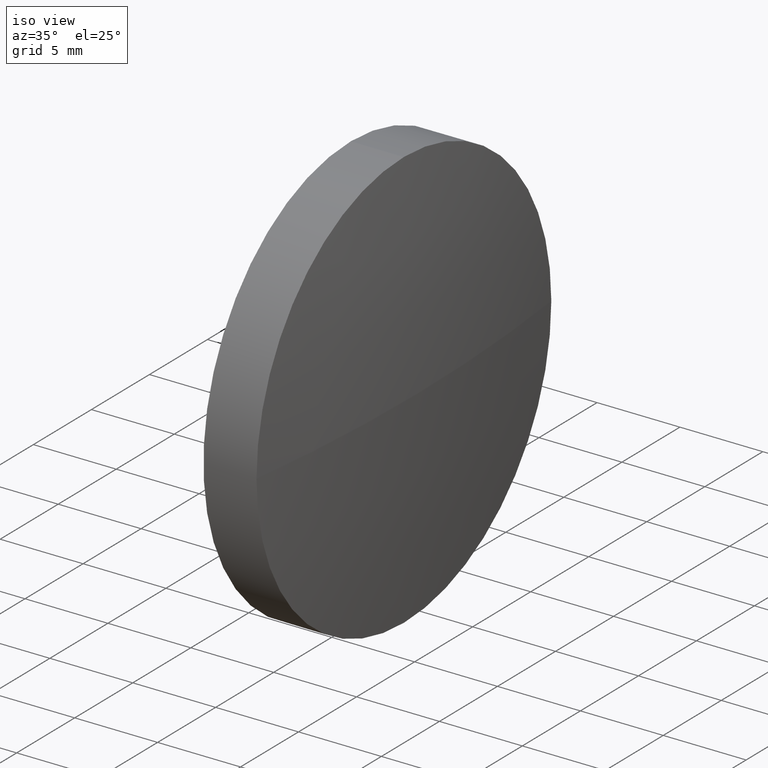
[diagram: clean part render]
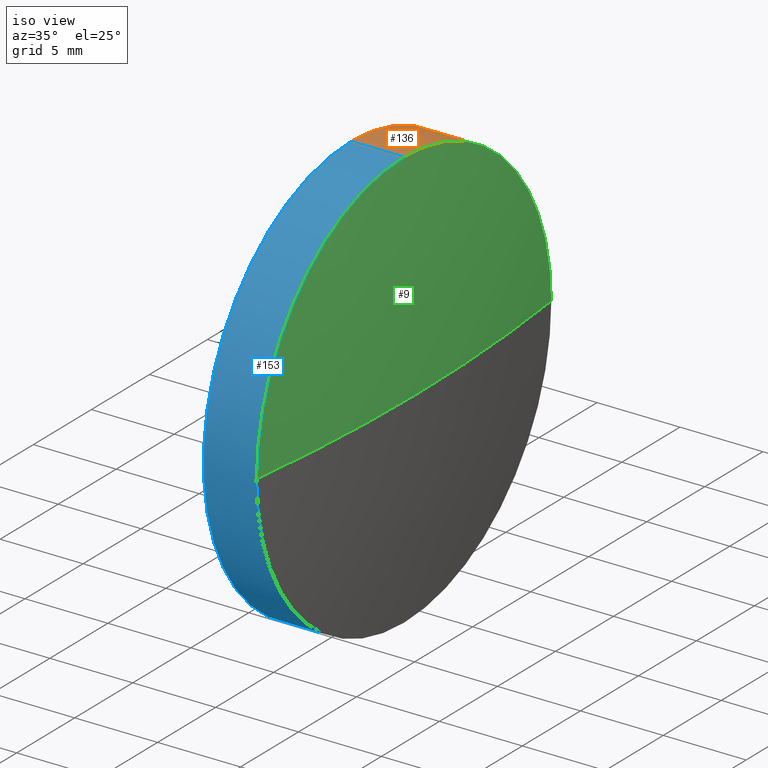
[diagram: same view with three faces highlighted in distinct colors, each labeled with its STEP entity id]
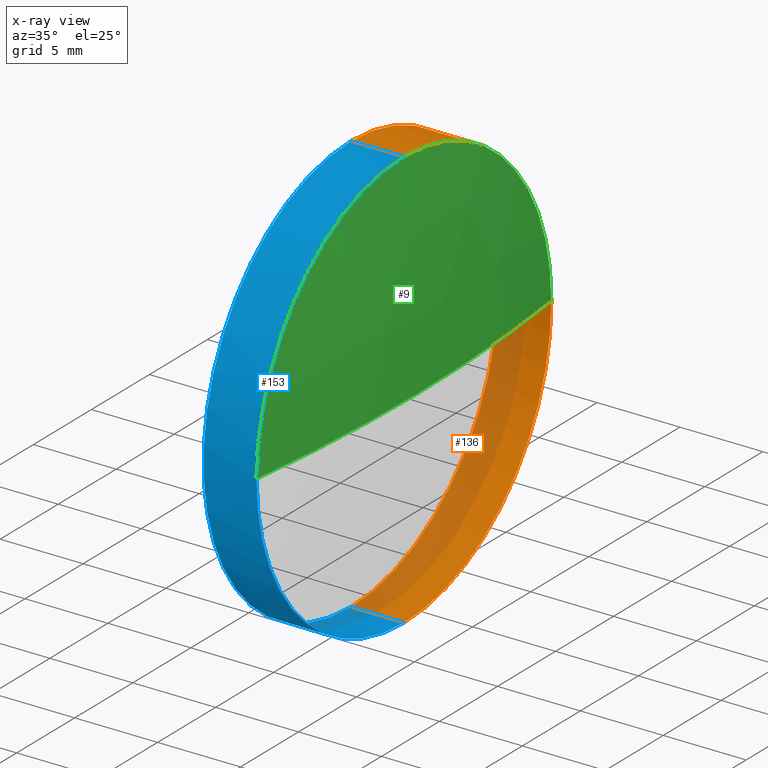
[diagram: x-ray of the same camera — body ghosted, the three highlighted faces saturated]
A machine part, iso view with three faces highlighted in distinct colors.
The next image is the same camera in x-ray (body ghosted, the three faces saturated) — at least one of them is partly hidden behind the body in this view.
Their STEP definitions:

[orange] entity #136 — the highlighted cylindrical surface (partial cylindrical patch) has radius 12.7 mm, axis along (-1, -0, -0).
#5 = CARTESIAN_POINT ( 'NONE',  ( 482.6204890152488900, 287.4786788978059300, 0.0000000000000000000 ) ) ;
#8 = CIRCLE ( 'NONE', #54, 12.70000000000004500 ) ;
#10 = EDGE_CURVE ( 'NONE', #18, #159, #50, .T. ) ;
#17 = EDGE_CURVE ( 'NONE', #159, #138, #8, .T. ) ;
#18 = VERTEX_POINT ( 'NONE', #98 ) ;
#20 = DIRECTION ( 'NONE',  ( -1.000000000000000000, -0.0000000000000000000, -0.0000000000000000000 ) ) ;
#27 = DIRECTION ( 'NONE',  ( 0.0000000000000000000, 0.0000000000000000000, 1.000000000000000000 ) ) ;
#31 = LINE ( 'NONE', #67, #126 ) ;
#32 = CYLINDRICAL_SURFACE ( 'NONE', #51, 12.70000000000004500 ) ;
#37 = CARTESIAN_POINT ( 'NONE',  ( 482.6204890152488900, 300.1786788978060400, 0.0000000000000000000 ) ) ;
#44 = ORIENTED_EDGE ( 'NONE', *, *, #81, .T. ) ;
#45 = DIRECTION ( 'NONE',  ( 0.0000000000000000000, 0.0000000000000000000, 1.000000000000000000 ) ) ;
#50 = CIRCLE ( 'NONE', #60, 12.70000000000004500 ) ;
#51 = AXIS2_PLACEMENT_3D ( 'NONE', #76, #179, #90 ) ;
#54 = AXIS2_PLACEMENT_3D ( 'NONE', #5, #101, #45 ) ;
#55 = VERTEX_POINT ( 'NONE', #175 ) ;
#58 = ORIENTED_EDGE ( 'NONE', *, *, #10, .T. ) ;
#59 = VERTEX_POINT ( 'NONE', #103 ) ;
#60 = AXIS2_PLACEMENT_3D ( 'NONE', #114, #113, #88 ) ;
#62 = AXIS2_PLACEMENT_3D ( 'NONE', #93, #109, #27 ) ;
#67 = CARTESIAN_POINT ( 'NONE',  ( 473.6822709795725400, 287.4786788978059300, 12.70000000000004500 ) ) ;
#69 = CARTESIAN_POINT ( 'NONE',  ( 473.6822709795725400, 287.4786788978059300, -12.70000000000004500 ) ) ;
#76 = CARTESIAN_POINT ( 'NONE',  ( 473.6822709795725400, 287.4786788978059300, 0.0000000000000000000 ) ) ;
#78 = DIRECTION ( 'NONE',  ( -1.000000000000000000, -0.0000000000000000000, -0.0000000000000000000 ) ) ;
#81 = EDGE_CURVE ( 'NONE', #138, #59, #173, .T. ) ;
#88 = DIRECTION ( 'NONE',  ( 0.0000000000000000000, 0.0000000000000000000, 1.000000000000000000 ) ) ;
#90 = DIRECTION ( 'NONE',  ( 0.0000000000000000000, 0.0000000000000000000, 1.000000000000000000 ) ) ;
#92 = VECTOR ( 'NONE', #78, 1000.000000000000000 ) ;
#93 = CARTESIAN_POINT ( 'NONE',  ( 479.4204890152489000, 287.4786788978059300, 0.0000000000000000000 ) ) ;
#95 = ORIENTED_EDGE ( 'NONE', *, *, #111, .F. ) ;
#96 = CIRCLE ( 'NONE', #62, 12.70000000000004500 ) ;
#98 = CARTESIAN_POINT ( 'NONE',  ( 482.6204890152488900, 287.4786788978059300, 12.70000000000004500 ) ) ;
#101 = DIRECTION ( 'NONE',  ( -1.000000000000000000, -0.0000000000000000000, -0.0000000000000000000 ) ) ;
#103 = CARTESIAN_POINT ( 'NONE',  ( 479.4204890152489000, 287.4786788978059300, -12.70000000000004500 ) ) ;
#104 = FACE_OUTER_BOUND ( 'NONE', #180, .T. ) ;
#105 = CARTESIAN_POINT ( 'NONE',  ( 482.6204890152488900, 287.4786788978059300, -12.70000000000004500 ) ) ;
#109 = DIRECTION ( 'NONE',  ( -1.000000000000000000, -0.0000000000000000000, -0.0000000000000000000 ) ) ;
#110 = ORIENTED_EDGE ( 'NONE', *, *, #162, .F. ) ;
#111 = EDGE_CURVE ( 'NONE', #18, #55, #31, .T. ) ;
#113 = DIRECTION ( 'NONE',  ( -1.000000000000000000, -0.0000000000000000000, -0.0000000000000000000 ) ) ;
#114 = CARTESIAN_POINT ( 'NONE',  ( 482.6204890152488900, 287.4786788978059300, 0.0000000000000000000 ) ) ;
#126 = VECTOR ( 'NONE', #20, 1000.000000000000000 ) ;
#136 = ADVANCED_FACE ( 'NONE', ( #104 ), #32, .T. ) ;
#138 = VERTEX_POINT ( 'NONE', #105 ) ;
#154 = ORIENTED_EDGE ( 'NONE', *, *, #17, .T. ) ;
#159 = VERTEX_POINT ( 'NONE', #37 ) ;
#162 = EDGE_CURVE ( 'NONE', #55, #59, #96, .T. ) ;
#173 = LINE ( 'NONE', #69, #92 ) ;
#175 = CARTESIAN_POINT ( 'NONE',  ( 479.4204890152489000, 287.4786788978059300, 12.70000000000004500 ) ) ;
#179 = DIRECTION ( 'NONE',  ( -1.000000000000000000, -0.0000000000000000000, -0.0000000000000000000 ) ) ;
#180 = EDGE_LOOP ( 'NONE', ( #154, #44, #110, #95, #58 ) ) ;

[blue] entity #153 — the highlighted cylindrical surface (partial cylindrical patch) has radius 12.7 mm, axis along (-1, -0, -0).
#13 = EDGE_LOOP ( 'NONE', ( #172, #117, #160, #168, #35 ) ) ;
#18 = VERTEX_POINT ( 'NONE', #98 ) ;
#19 = DIRECTION ( 'NONE',  ( -1.000000000000000000, -0.0000000000000000000, -0.0000000000000000000 ) ) ;
#20 = DIRECTION ( 'NONE',  ( -1.000000000000000000, -0.0000000000000000000, -0.0000000000000000000 ) ) ;
#31 = LINE ( 'NONE', #67, #126 ) ;
#35 = ORIENTED_EDGE ( 'NONE', *, *, #39, .F. ) ;
#39 = EDGE_CURVE ( 'NONE', #59, #55, #77, .T. ) ;
#42 = AXIS2_PLACEMENT_3D ( 'NONE', #178, #19, #116 ) ;
#46 = AXIS2_PLACEMENT_3D ( 'NONE', #91, #133, #52 ) ;
#48 = CARTESIAN_POINT ( 'NONE',  ( 479.4204890152489000, 287.4786788978059300, 0.0000000000000000000 ) ) ;
#52 = DIRECTION ( 'NONE',  ( 0.0000000000000000000, 0.0000000000000000000, 1.000000000000000000 ) ) ;
#55 = VERTEX_POINT ( 'NONE', #175 ) ;
#59 = VERTEX_POINT ( 'NONE', #103 ) ;
#63 = AXIS2_PLACEMENT_3D ( 'NONE', #48, #65, #119 ) ;
#65 = DIRECTION ( 'NONE',  ( -1.000000000000000000, -0.0000000000000000000, -0.0000000000000000000 ) ) ;
#67 = CARTESIAN_POINT ( 'NONE',  ( 473.6822709795725400, 287.4786788978059300, 12.70000000000004500 ) ) ;
#69 = CARTESIAN_POINT ( 'NONE',  ( 473.6822709795725400, 287.4786788978059300, -12.70000000000004500 ) ) ;
#77 = CIRCLE ( 'NONE', #63, 12.70000000000004500 ) ;
#78 = DIRECTION ( 'NONE',  ( -1.000000000000000000, -0.0000000000000000000, -0.0000000000000000000 ) ) ;
#81 = EDGE_CURVE ( 'NONE', #138, #59, #173, .T. ) ;
#91 = CARTESIAN_POINT ( 'NONE',  ( 473.6822709795725400, 287.4786788978059300, 0.0000000000000000000 ) ) ;
#92 = VECTOR ( 'NONE', #78, 1000.000000000000000 ) ;
#98 = CARTESIAN_POINT ( 'NONE',  ( 482.6204890152488900, 287.4786788978059300, 12.70000000000004500 ) ) ;
#103 = CARTESIAN_POINT ( 'NONE',  ( 479.4204890152489000, 287.4786788978059300, -12.70000000000004500 ) ) ;
#105 = CARTESIAN_POINT ( 'NONE',  ( 482.6204890152488900, 287.4786788978059300, -12.70000000000004500 ) ) ;
#111 = EDGE_CURVE ( 'NONE', #18, #55, #31, .T. ) ;
#116 = DIRECTION ( 'NONE',  ( 0.0000000000000000000, 0.0000000000000000000, 1.000000000000000000 ) ) ;
#117 = ORIENTED_EDGE ( 'NONE', *, *, #169, .T. ) ;
#119 = DIRECTION ( 'NONE',  ( 0.0000000000000000000, 0.0000000000000000000, 1.000000000000000000 ) ) ;
#120 = DIRECTION ( 'NONE',  ( -1.000000000000000000, -0.0000000000000000000, -0.0000000000000000000 ) ) ;
#126 = VECTOR ( 'NONE', #20, 1000.000000000000000 ) ;
#127 = VERTEX_POINT ( 'NONE', #161 ) ;
#133 = DIRECTION ( 'NONE',  ( -1.000000000000000000, -0.0000000000000000000, -0.0000000000000000000 ) ) ;
#137 = DIRECTION ( 'NONE',  ( 0.0000000000000000000, 0.0000000000000000000, 1.000000000000000000 ) ) ;
#138 = VERTEX_POINT ( 'NONE', #105 ) ;
#148 = CIRCLE ( 'NONE', #150, 12.70000000000004500 ) ;
#150 = AXIS2_PLACEMENT_3D ( 'NONE', #152, #120, #137 ) ;
#152 = CARTESIAN_POINT ( 'NONE',  ( 482.6204890152488900, 287.4786788978059300, 0.0000000000000000000 ) ) ;
#153 = ADVANCED_FACE ( 'NONE', ( #184 ), #171, .T. ) ;
#158 = EDGE_CURVE ( 'NONE', #127, #18, #182, .T. ) ;
#160 = ORIENTED_EDGE ( 'NONE', *, *, #158, .T. ) ;
#161 = CARTESIAN_POINT ( 'NONE',  ( 482.6204890152488900, 274.7786788978057200, -1.555301434917146900E-015 ) ) ;
#168 = ORIENTED_EDGE ( 'NONE', *, *, #111, .T. ) ;
#169 = EDGE_CURVE ( 'NONE', #138, #127, #148, .T. ) ;
#171 = CYLINDRICAL_SURFACE ( 'NONE', #46, 12.70000000000004500 ) ;
#172 = ORIENTED_EDGE ( 'NONE', *, *, #81, .F. ) ;
#173 = LINE ( 'NONE', #69, #92 ) ;
#175 = CARTESIAN_POINT ( 'NONE',  ( 479.4204890152489000, 287.4786788978059300, 12.70000000000004500 ) ) ;
#178 = CARTESIAN_POINT ( 'NONE',  ( 482.6204890152488900, 287.4786788978059300, 0.0000000000000000000 ) ) ;
#182 = CIRCLE ( 'NONE', #42, 12.70000000000004500 ) ;
#184 = FACE_OUTER_BOUND ( 'NONE', #13, .T. ) ;

[green] entity #9 — the highlighted spherical surface has radius 101.206 mm.
#1 = EDGE_CURVE ( 'NONE', #29, #127, #64, .T. ) ;
#2 = ORIENTED_EDGE ( 'NONE', *, *, #34, .T. ) ;
#3 = AXIS2_PLACEMENT_3D ( 'NONE', #174, #156, #100 ) ;
#4 = CARTESIAN_POINT ( 'NONE',  ( 382.2142390152484900, 287.4786788978058200, 0.0000000000000000000 ) ) ;
#6 = CARTESIAN_POINT ( 'NONE',  ( 382.2142390152484900, 287.4786788978058200, 0.0000000000000000000 ) ) ;
#9 = ADVANCED_FACE ( 'NONE', ( #147 ), #43, .T. ) ;
#10 = EDGE_CURVE ( 'NONE', #18, #159, #50, .T. ) ;
#14 = DIRECTION ( 'NONE',  ( 0.0000000000000000000, 1.000000000000000000, 1.224646799147353200E-016 ) ) ;
#18 = VERTEX_POINT ( 'NONE', #98 ) ;
#19 = DIRECTION ( 'NONE',  ( -1.000000000000000000, -0.0000000000000000000, -0.0000000000000000000 ) ) ;
#29 = VERTEX_POINT ( 'NONE', #36 ) ;
#34 = EDGE_CURVE ( 'NONE', #29, #159, #97, .T. ) ;
#36 = CARTESIAN_POINT ( 'NONE',  ( 483.4204890152489000, 287.4786788978058200, 0.0000000000000000000 ) ) ;
#37 = CARTESIAN_POINT ( 'NONE',  ( 482.6204890152488900, 300.1786788978060400, 0.0000000000000000000 ) ) ;
#42 = AXIS2_PLACEMENT_3D ( 'NONE', #178, #19, #116 ) ;
#43 = SPHERICAL_SURFACE ( 'NONE', #3, 101.2062500000004400 ) ;
#50 = CIRCLE ( 'NONE', #60, 12.70000000000004500 ) ;
#60 = AXIS2_PLACEMENT_3D ( 'NONE', #114, #113, #88 ) ;
#64 = CIRCLE ( 'NONE', #155, 101.2062500000004400 ) ;
#73 = ORIENTED_EDGE ( 'NONE', *, *, #158, .F. ) ;
#75 = AXIS2_PLACEMENT_3D ( 'NONE', #6, #163, #89 ) ;
#86 = ORIENTED_EDGE ( 'NONE', *, *, #10, .F. ) ;
#88 = DIRECTION ( 'NONE',  ( 0.0000000000000000000, 0.0000000000000000000, 1.000000000000000000 ) ) ;
#89 = DIRECTION ( 'NONE',  ( 1.000000000000000000, 0.0000000000000000000, 0.0000000000000000000 ) ) ;
#97 = CIRCLE ( 'NONE', #75, 101.2062500000004400 ) ;
#98 = CARTESIAN_POINT ( 'NONE',  ( 482.6204890152488900, 287.4786788978059300, 12.70000000000004500 ) ) ;
#100 = DIRECTION ( 'NONE',  ( 0.0000000000000000000, 1.000000000000000000, 0.0000000000000000000 ) ) ;
#112 = ORIENTED_EDGE ( 'NONE', *, *, #1, .F. ) ;
#113 = DIRECTION ( 'NONE',  ( -1.000000000000000000, -0.0000000000000000000, -0.0000000000000000000 ) ) ;
#114 = CARTESIAN_POINT ( 'NONE',  ( 482.6204890152488900, 287.4786788978059300, 0.0000000000000000000 ) ) ;
#116 = DIRECTION ( 'NONE',  ( 0.0000000000000000000, 0.0000000000000000000, 1.000000000000000000 ) ) ;
#127 = VERTEX_POINT ( 'NONE', #161 ) ;
#143 = DIRECTION ( 'NONE',  ( 0.0000000000000000000, 1.224646799147353200E-016, -1.000000000000000000 ) ) ;
#147 = FACE_OUTER_BOUND ( 'NONE', #177, .T. ) ;
#155 = AXIS2_PLACEMENT_3D ( 'NONE', #4, #143, #14 ) ;
#156 = DIRECTION ( 'NONE',  ( -0.0000000000000000000, 0.0000000000000000000, -1.000000000000000000 ) ) ;
#158 = EDGE_CURVE ( 'NONE', #127, #18, #182, .T. ) ;
#159 = VERTEX_POINT ( 'NONE', #37 ) ;
#161 = CARTESIAN_POINT ( 'NONE',  ( 482.6204890152488900, 274.7786788978057200, -1.555301434917146900E-015 ) ) ;
#163 = DIRECTION ( 'NONE',  ( -0.0000000000000000000, 0.0000000000000000000, 1.000000000000000000 ) ) ;
#174 = CARTESIAN_POINT ( 'NONE',  ( 382.2142390152484900, 287.4786788978058200, 0.0000000000000000000 ) ) ;
#177 = EDGE_LOOP ( 'NONE', ( #112, #2, #86, #73 ) ) ;
#178 = CARTESIAN_POINT ( 'NONE',  ( 482.6204890152488900, 287.4786788978059300, 0.0000000000000000000 ) ) ;
#182 = CIRCLE ( 'NONE', #42, 12.70000000000004500 ) ;